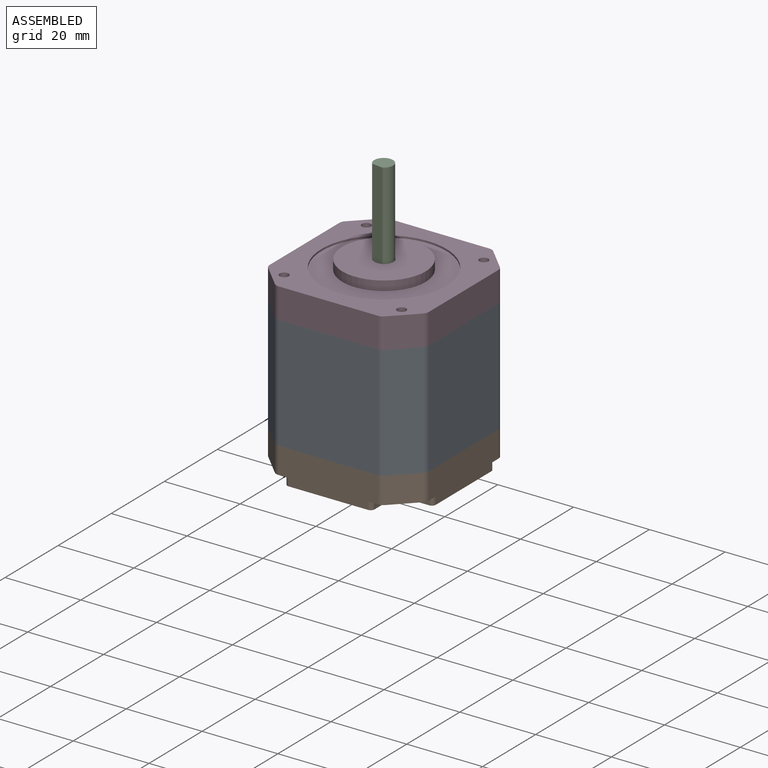
[diagram: assembled view]
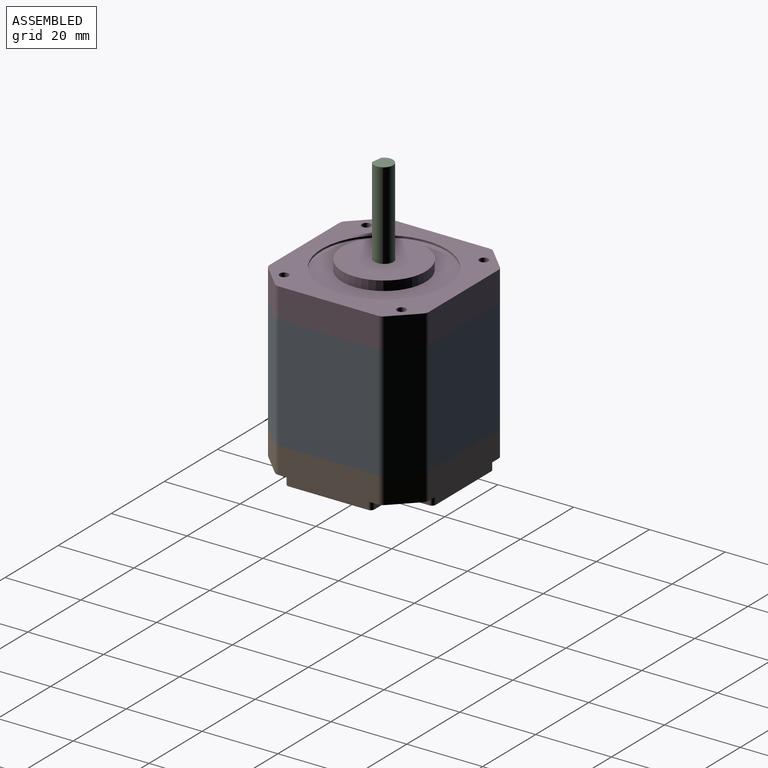
[diagram: assembled view, second angle]
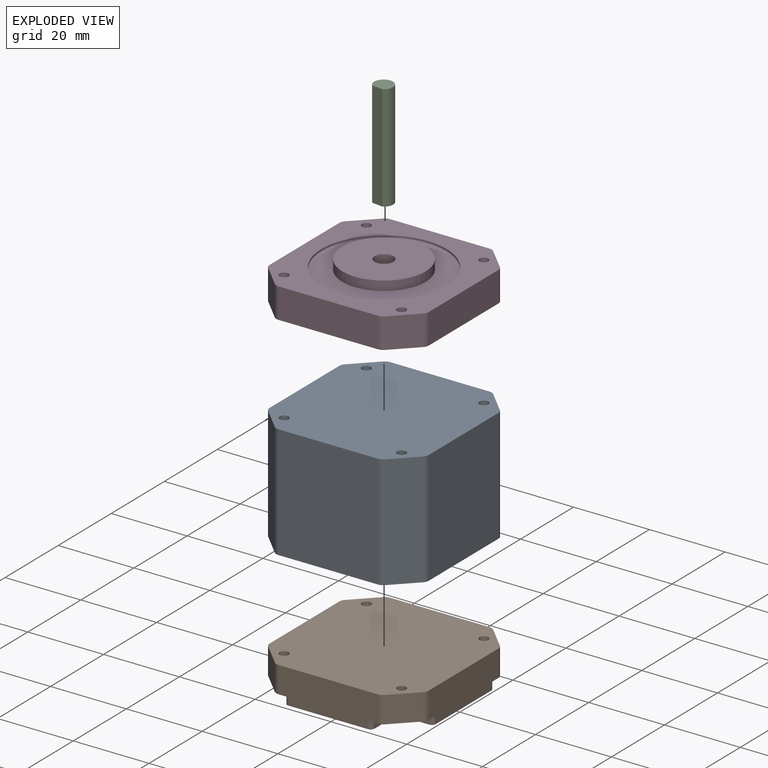
[diagram: exploded view]
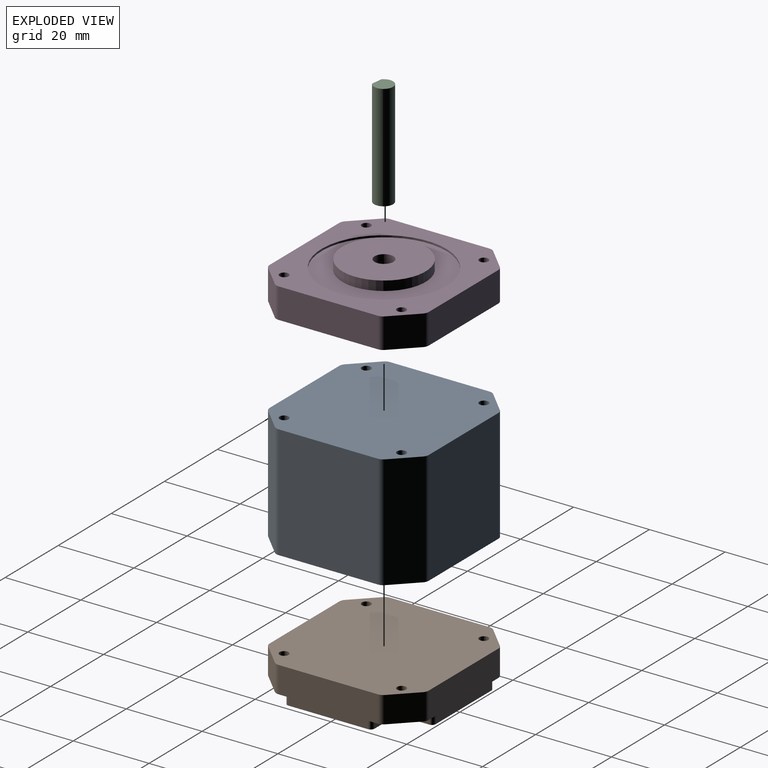
[diagram: exploded view, second angle]
ASSEMBLY  parts=4 mates=3
PART A: 22 faces, bbox 42x42x30 mm
  f0: plane 30x26.2mm, normal (1,0,0), area 786mm2, adj f1,f19,f20,f21
  f1: cylinder r=2mm len=30mm, axis (0,0,-1), area 47.1mm2, adj f0,f2,f20,f21
  f2: plane 30x5.9mm, normal (0.71,0.71,0), area 250.3mm2, adj f1,f3,f20,f21
  f3: cylinder r=2mm len=30mm, axis (0,0,-1), area 47.1mm2, adj f2,f4,f20,f21
  f4: plane 30x26.2mm, normal (0,1,0), area 786mm2, adj f3,f5,f20,f21
  f5: cylinder r=2mm len=30mm, axis (0,0,-1), area 47.1mm2, adj f4,f6,f20,f21
  f6: plane 30x5.9mm, normal (-0.71,0.71,0), area 250.3mm2, adj f5,f7,f20,f21
  f7: cylinder r=2mm len=30mm, axis (0,0,-1), area 47.1mm2, adj f6,f8,f20,f21
  f8: plane 30x26.2mm, normal (-1,0,0), area 786mm2, adj f7,f9,f20,f21
  f9: cylinder r=2mm len=30mm, axis (0,0,-1), area 47.1mm2, adj f8,f10,f20,f21
  f10: plane 30x5.9mm, normal (-0.71,-0.71,0), area 250.3mm2, adj f9,f11,f20,f21
  f11: cylinder r=2mm len=30mm, axis (0,0,-1), area 47.1mm2, adj f10,f12,f20,f21
  f12: plane 30x26.2mm, normal (0,-1,0), area 786mm2, adj f11,f13,f20,f21
  f13: cylinder r=2mm len=30mm, axis (0,0,-1), area 47.1mm2, adj f12,f14,f20,f21
  f14: plane 30x5.9mm, normal (0.71,-0.71,0), area 250.3mm2, adj f13,f19,f20,f21
  f15: cylinder r=1.2mm len=30mm, axis (0,0,-1), area 226.2mm2, adj f20,f21
  f16: cylinder r=1.2mm len=30mm, axis (0,0,-1), area 226.2mm2, adj f20,f21
  f17: cylinder r=1.2mm len=30mm, axis (0,0,-1), area 226.2mm2, adj f20,f21
  f18: cylinder r=1.2mm len=30mm, axis (0,0,-1), area 226.2mm2, adj f20,f21
  f19: cylinder r=2mm len=30mm, axis (0,0,-1), area 47.1mm2, adj f0,f14,f20,f21
  f20: plane 42x42mm, normal (0,0,1), area 1645.2mm2, adj f0,f1,f2,f3,f4,f5,f6,f7
  f21: plane 42x42mm, normal (0,0,-1), area 1645.2mm2, adj f0,f1,f2,f3,f4,f5,f6,f7
PART B: 48 faces, bbox 42x42x9 mm
  f0: plane 7x5.9mm, normal (0.71,-0.71,0), area 58.4mm2, adj f4,f19,f21,f39
  f1: plane 7x5.9mm, normal (0.71,0.71,0), area 58.4mm2, adj f6,f7,f21,f33
  f2: plane 7x5.9mm, normal (-0.71,0.71,0), area 58.4mm2, adj f9,f10,f21,f27
  f3: plane 7x5.9mm, normal (-0.71,-0.71,0), area 58.4mm2, adj f12,f13,f21,f45
  f4: cylinder r=2mm len=7mm, axis (0,0,-1), area 11mm2, adj f0,f5,f21,f39
  f5: plane 26.2x9mm, normal (1,0,0), area 225.4mm2, adj f4,f6,f20,f21,f32,f33,f36,f39
  f6: cylinder r=2mm len=7mm, axis (0,0,-1), area 11mm2, adj f1,f5,f21,f33
  f7: cylinder r=2mm len=7mm, axis (0,0,-1), area 11mm2, adj f1,f8,f21,f33
  f8: plane 26.2x9mm, normal (0,1,0), area 225.4mm2, adj f7,f9,f20,f21,f23,f27,f28,f33
  f9: cylinder r=2mm len=7mm, axis (0,0,-1), area 11mm2, adj f2,f8,f21,f27
  f10: cylinder r=2mm len=7mm, axis (0,0,-1), area 11mm2, adj f2,f11,f21,f27
  f11: plane 26.2x9mm, normal (-1,0,0), area 225.4mm2, adj f10,f12,f20,f21,f24,f27,f40,f45
  f12: cylinder r=2mm len=7mm, axis (0,0,-1), area 11mm2, adj f3,f11,f21,f45
  f13: cylinder r=2mm len=7mm, axis (0,0,-1), area 11mm2, adj f3,f14,f21,f45
  f14: plane 26.2x9mm, normal (0,-1,0), area 225.4mm2, adj f13,f19,f20,f21,f35,f39,f41,f45
  f15: cylinder r=1.2mm len=7mm, axis (0,0,-1), area 52.8mm2, adj f21,f27
  f16: cylinder r=1.2mm len=7mm, axis (0,0,-1), area 52.8mm2, adj f21,f33
  f17: cylinder r=1.2mm len=7mm, axis (0,0,-1), area 52.8mm2, adj f21,f45
  f18: cylinder r=1.2mm len=7mm, axis (0,0,-1), area 52.8mm2, adj f21,f39
  f19: cylinder r=2mm len=7mm, axis (0,0,-1), area 11mm2, adj f0,f14,f21,f39
  f20: plane 42x42mm, normal (0,0,1), area 1376.5mm2, adj f5,f8,f11,f14,f22,f23,f24,f25
  f21: plane 42x42mm, normal (0,0,-1), area 1645.2mm2, adj f0,f1,f2,f3,f4,f5,f6,f7
  f22: plane 4.5x2mm, normal (-1,0,0), area 9mm2, adj f20,f23,f26,f27
  f23: cylinder r=1mm len=2mm, axis (0,0,1), area 3.1mm2, adj f8,f20,f22,f27
  f24: cylinder r=1mm len=2mm, axis (0,0,1), area 3.1mm2, adj f11,f20,f25,f27
  f25: plane 4.5x2mm, normal (0,1,0), area 9mm2, adj f20,f24,f26,f27
  f26: cylinder r=4mm len=4mm, axis (0,0,1), area 12.6mm2, adj f20,f22,f25,f27
  f27: plane 10.5x10.5mm, normal (0,0,1), area 57.5mm2, adj f2,f8,f9,f10,f11,f15,f22,f23
  f28: cylinder r=1mm len=2mm, axis (0,0,1), area 3.1mm2, adj f8,f20,f29,f33
  f29: plane 4.5x2mm, normal (1,0,0), area 9mm2, adj f20,f28,f30,f33
  f30: cylinder r=4mm len=4mm, axis (0,0,1), area 12.6mm2, adj f20,f29,f31,f33
  f31: plane 4.5x2mm, normal (0,1,0), area 9mm2, adj f20,f30,f32,f33
  f32: cylinder r=1mm len=2mm, axis (0,0,1), area 3.1mm2, adj f5,f20,f31,f33
  f33: plane 10.5x10.5mm, normal (0,0,1), area 57.5mm2, adj f1,f5,f6,f7,f8,f16,f28,f29
  f34: plane 4.5x2mm, normal (1,0,0), area 9mm2, adj f20,f35,f38,f39
  f35: cylinder r=1mm len=2mm, axis (0,0,1), area 3.1mm2, adj f14,f20,f34,f39
  f36: cylinder r=1mm len=2mm, axis (0,0,1), area 3.1mm2, adj f5,f20,f37,f39
  f37: plane 4.5x2mm, normal (0,-1,0), area 9mm2, adj f20,f36,f38,f39
  f38: cylinder r=4mm len=4mm, axis (0,0,1), area 12.6mm2, adj f20,f34,f37,f39
  f39: plane 10.5x10.5mm, normal (0,0,1), area 57.5mm2, adj f0,f4,f5,f14,f18,f19,f34,f35
  f40: cylinder r=1mm len=2mm, axis (0,0,1), area 3.1mm2, adj f11,f20,f44,f45
  f41: cylinder r=1mm len=2mm, axis (0,0,1), area 3.1mm2, adj f14,f20,f42,f45
  f42: plane 4.5x2mm, normal (-1,0,0), area 9mm2, adj f20,f41,f43,f45
  f43: cylinder r=4mm len=4mm, axis (0,0,1), area 12.6mm2, adj f20,f42,f44,f45
  f44: plane 4.5x2mm, normal (0,-1,0), area 9mm2, adj f20,f40,f43,f45
  f45: plane 10.5x10.5mm, normal (0,0,1), area 57.5mm2, adj f3,f11,f12,f13,f14,f17,f40,f41
  f46: cylinder r=3.5mm len=7mm, axis (0,0,1), area 44mm2, adj f20,f47
  f47: plane 7x7mm, normal (0,0,1), area 38.5mm2, adj f46
PART C: 4 faces, bbox 5x5x28 mm
  f0: cylinder r=2.5mm len=28mm, axis (0,0,-1), area 349.7mm2, adj f1,f2,f3
  f1: plane 28x2.23mm, normal (0.67,0.74,0), area 84mm2, adj f0,f2,f3
  f2: plane 5x5mm, normal (0,0,1), area 18.6mm2, adj f0,f1
  f3: plane 5x5mm, normal (0,0,-1), area 18.6mm2, adj f0,f1
PART D: 28 faces, bbox 42x42x10 mm
  f0: plane 8x5.9mm, normal (0.71,-0.71,0), area 66.7mm2, adj f1,f19,f20,f21
  f1: cylinder r=2mm len=8mm, axis (0,0,-1), area 12.6mm2, adj f0,f2,f20,f21
  f2: plane 26.2x8mm, normal (1,0,0), area 209.6mm2, adj f1,f3,f20,f21
  f3: cylinder r=2mm len=8mm, axis (0,0,-1), area 12.6mm2, adj f2,f4,f20,f21
  f4: plane 8x5.9mm, normal (0.71,0.71,0), area 66.7mm2, adj f3,f5,f20,f21
  f5: cylinder r=2mm len=8mm, axis (0,0,-1), area 12.6mm2, adj f4,f6,f20,f21
  f6: plane 26.2x8mm, normal (0,1,0), area 209.6mm2, adj f5,f7,f20,f21
  f7: cylinder r=2mm len=8mm, axis (0,0,-1), area 12.6mm2, adj f6,f8,f20,f21
  f8: plane 8x5.9mm, normal (-0.71,0.71,0), area 66.7mm2, adj f7,f9,f20,f21
  f9: cylinder r=2mm len=8mm, axis (0,0,-1), area 12.6mm2, adj f8,f10,f20,f21
  f10: plane 26.2x8mm, normal (-1,0,0), area 209.6mm2, adj f9,f11,f20,f21
  f11: cylinder r=2mm len=8mm, axis (0,0,-1), area 12.6mm2, adj f10,f12,f20,f21
  f12: plane 8x5.9mm, normal (-0.71,-0.71,0), area 66.7mm2, adj f11,f13,f20,f21
  f13: cylinder r=2mm len=8mm, axis (0,0,-1), area 12.6mm2, adj f12,f14,f20,f21
  f14: plane 26.2x8mm, normal (0,-1,0), area 209.6mm2, adj f13,f19,f20,f21
  f15: cylinder r=1.2mm len=8mm, axis (0,0,-1), area 60.3mm2, adj f20,f21
  f16: cylinder r=1.2mm len=8mm, axis (0,0,-1), area 60.3mm2, adj f20,f21
  f17: cylinder r=1.2mm len=8mm, axis (0,0,-1), area 60.3mm2, adj f20,f21
  f18: cylinder r=1.2mm len=8mm, axis (0,0,-1), area 60.3mm2, adj f20,f21
  f19: cylinder r=2mm len=8mm, axis (0,0,-1), area 12.6mm2, adj f0,f14,f20,f21
  f20: plane 42x42mm, normal (0,0,1), area 789.9mm2, adj f0,f1,f2,f3,f4,f5,f6,f7
  f21: plane 42x42mm, normal (0,0,-1), area 1645.2mm2, adj f0,f1,f2,f3,f4,f5,f6,f7
  f22: cylinder r=11mm len=22mm, axis (0,0,1), area 172.8mm2, adj f24,f25
  f23: cylinder r=16.5mm len=33mm, axis (0,0,1), area 51.8mm2, adj f20,f24
  f24: plane 33x33mm, normal (0,0,1), area 475.2mm2, adj f22,f23
  f25: plane 22x22mm, normal (0,0,1), area 360.5mm2, adj f22,f26
  f26: cylinder r=2.5mm len=5mm, axis (0,0,1), area 78.5mm2, adj f25,f27
  f27: plane 5x5mm, normal (0,0,1), area 19.6mm2, adj f26
PLACE A t=(-85.39,-45.81,9)mm
PLACE B rot(axis=(1,0,0),180deg) t=(-138.66,45.81,9)mm
PLACE C rot(axis=(0,0,-1),145deg) t=(-11.73,47.6,34)mm
PLACE D t=(-17.78,-45.81,39)mm
MATE fastened B.f46 <-> A.f21  axis (0,0,1) through (0,0,9)mm
MATE fastened D.f22 <-> A.f20  axis (0,0,-1) through (0,0,39)mm
MATE revolute C.f3 <-> D.f22  axis (0,0,-1) through (0,0,44)mm
